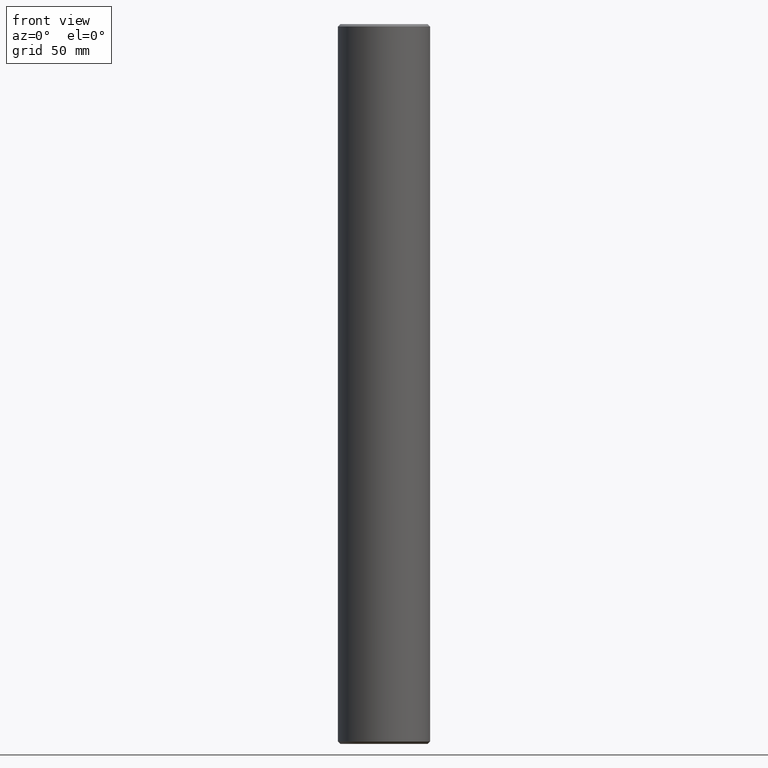
[diagram: clean part render]
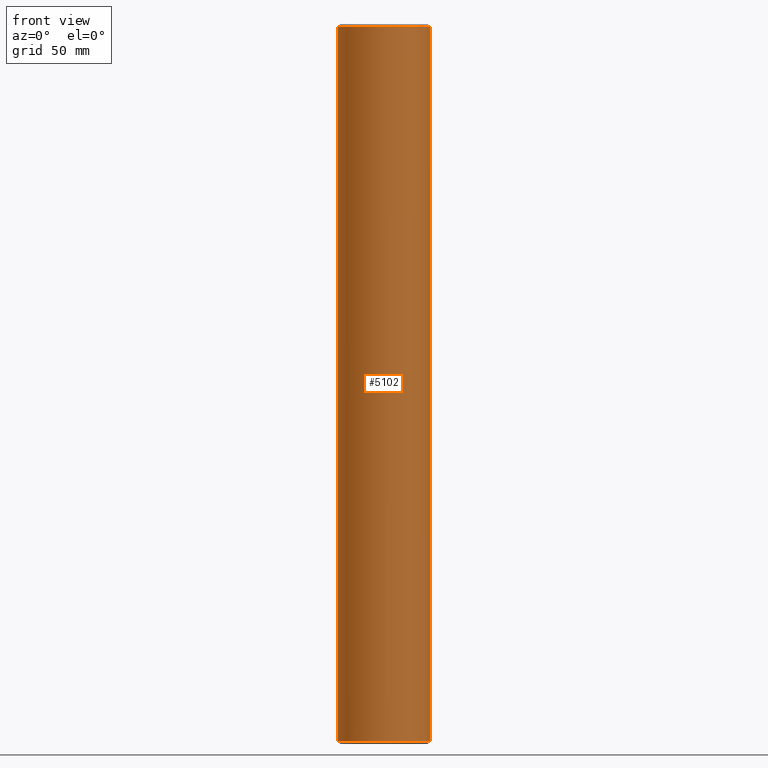
[diagram: same view with one face highlighted and labeled with its STEP entity id]
A machine part, front view. The second image highlights one B-rep face of the part: STEP entity #5102.
In plain terms, the highlighted cylindrical surface (partial cylindrical patch) has radius 19.2 mm, axis along (-0, -0, -1).
Its self-contained STEP definition (entity closure, byte-faithful):
#29 = VERTEX_POINT ( 'NONE', #3915 ) ;
#98 = VERTEX_POINT ( 'NONE', #8506 ) ;
#108 = CARTESIAN_POINT ( 'NONE',  ( 19.19999999999999900, 2.351321854362917700E-015, -148.9999999999999400 ) ) ;
#450 = VECTOR ( 'NONE', #2521, 1000.000000000000000 ) ;
#1347 = DIRECTION ( 'NONE',  ( 0.0000000000000000000, 0.0000000000000000000, -1.000000000000000000 ) ) ;
#1551 = CYLINDRICAL_SURFACE ( 'NONE', #6313, 19.19999999999999900 ) ;
#1693 = CARTESIAN_POINT ( 'NONE',  ( 0.0000000000000000000, 0.0000000000000000000, -148.9999999999999400 ) ) ;
#1928 = EDGE_CURVE ( 'NONE', #14259, #29, #13230, .T. ) ;
#2110 = EDGE_LOOP ( 'NONE', ( #11266, #13003, #3620, #9288 ) ) ;
#2521 = DIRECTION ( 'NONE',  ( -0.0000000000000000000, -0.0000000000000000000, -1.000000000000000000 ) ) ;
#3377 = CIRCLE ( 'NONE', #5298, 19.19999999999999900 ) ;
#3620 = ORIENTED_EDGE ( 'NONE', *, *, #1928, .T. ) ;
#3915 = CARTESIAN_POINT ( 'NONE',  ( -19.19999999999999900, 0.0000000000000000000, -148.9999999999999400 ) ) ;
#4708 = CARTESIAN_POINT ( 'NONE',  ( 0.0000000000000000000, 0.0000000000000000000, 148.9999999999999700 ) ) ;
#5102 = ADVANCED_FACE ( 'NONE', ( #11822 ), #1551, .T. ) ;
#5298 = AXIS2_PLACEMENT_3D ( 'NONE', #1693, #11668, #5958 ) ;
#5397 = CARTESIAN_POINT ( 'NONE',  ( -19.19999999999999900, 0.0000000000000000000, 148.9999999999999700 ) ) ;
#5958 = DIRECTION ( 'NONE',  ( 1.000000000000000000, 0.0000000000000000000, 0.0000000000000000000 ) ) ;
#6291 = VERTEX_POINT ( 'NONE', #108 ) ;
#6313 = AXIS2_PLACEMENT_3D ( 'NONE', #7450, #12876, #11941 ) ;
#6551 = CARTESIAN_POINT ( 'NONE',  ( -19.19999999999999900, 0.0000000000000000000, 150.0000000000000000 ) ) ;
#7450 = CARTESIAN_POINT ( 'NONE',  ( 0.0000000000000000000, 0.0000000000000000000, 150.0000000000000000 ) ) ;
#7546 = DIRECTION ( 'NONE',  ( -0.0000000000000000000, -0.0000000000000000000, -1.000000000000000000 ) ) ;
#8137 = AXIS2_PLACEMENT_3D ( 'NONE', #4708, #1347, #8997 ) ;
#8506 = CARTESIAN_POINT ( 'NONE',  ( 19.19999999999999900, 2.351321854362917700E-015, 148.9999999999999700 ) ) ;
#8571 = EDGE_CURVE ( 'NONE', #29, #6291, #3377, .T. ) ;
#8573 = EDGE_CURVE ( 'NONE', #98, #6291, #12473, .T. ) ;
#8997 = DIRECTION ( 'NONE',  ( 1.000000000000000000, 0.0000000000000000000, 0.0000000000000000000 ) ) ;
#9288 = ORIENTED_EDGE ( 'NONE', *, *, #8571, .T. ) ;
#9318 = CIRCLE ( 'NONE', #8137, 19.19999999999999900 ) ;
#9765 = EDGE_CURVE ( 'NONE', #98, #14259, #9318, .T. ) ;
#10458 = VECTOR ( 'NONE', #7546, 1000.000000000000000 ) ;
#11266 = ORIENTED_EDGE ( 'NONE', *, *, #8573, .F. ) ;
#11476 = CARTESIAN_POINT ( 'NONE',  ( 19.19999999999999900, 2.351321854362917700E-015, 150.0000000000000000 ) ) ;
#11668 = DIRECTION ( 'NONE',  ( -0.0000000000000000000, -0.0000000000000000000, 1.000000000000000000 ) ) ;
#11822 = FACE_OUTER_BOUND ( 'NONE', #2110, .T. ) ;
#11941 = DIRECTION ( 'NONE',  ( -1.000000000000000000, 0.0000000000000000000, 0.0000000000000000000 ) ) ;
#12473 = LINE ( 'NONE', #11476, #450 ) ;
#12876 = DIRECTION ( 'NONE',  ( -0.0000000000000000000, -0.0000000000000000000, -1.000000000000000000 ) ) ;
#13003 = ORIENTED_EDGE ( 'NONE', *, *, #9765, .T. ) ;
#13230 = LINE ( 'NONE', #6551, #10458 ) ;
#14259 = VERTEX_POINT ( 'NONE', #5397 ) ;